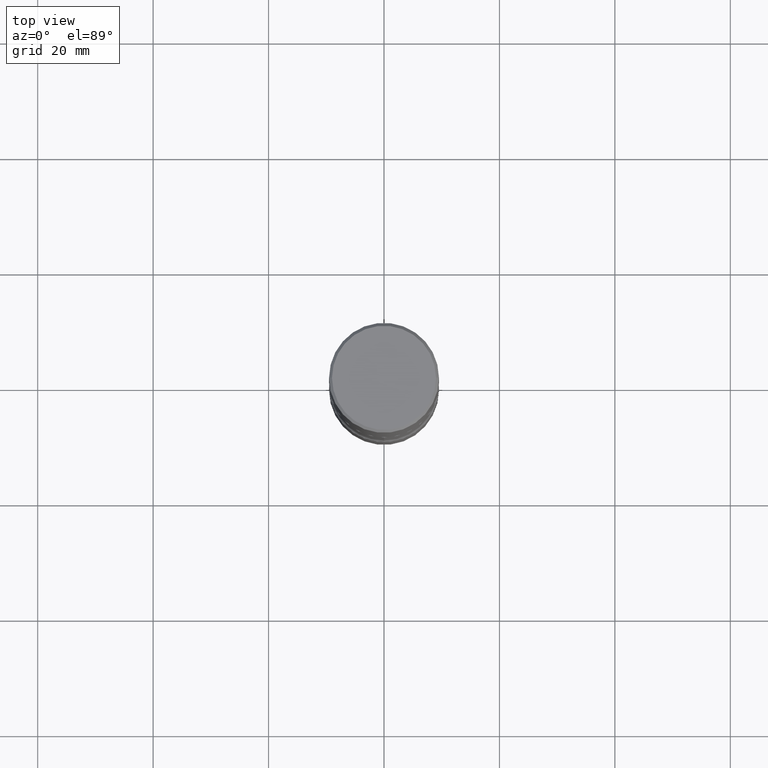
[diagram: clean part render]
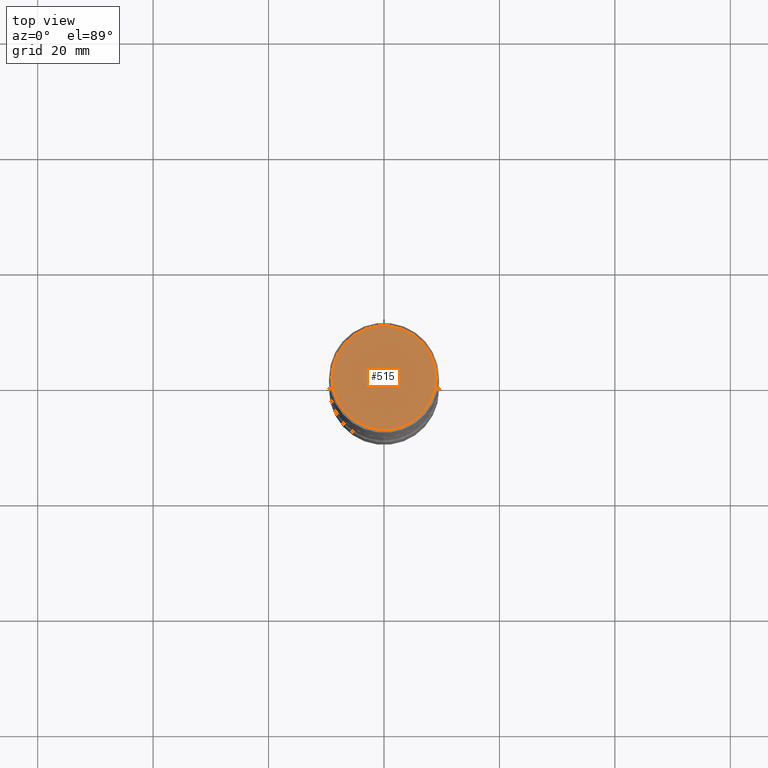
[diagram: same view with one face highlighted and labeled with its STEP entity id]
A machine part, top view. The second image highlights one B-rep face of the part: STEP entity #515.
In plain terms, the highlighted planar face has unit normal (0, -0, -1).
Its self-contained STEP definition (entity closure, byte-faithful):
#6 = DIRECTION ( 'NONE',  ( 1.000000000000000000, -6.982962677686266711E-15, 4.876231632511983138E-29 ) ) ;
#81 = CARTESIAN_POINT ( 'NONE',  ( 3.131554243005659264E-46, -4.471029511141341874E-32, -1.280553747030123384E-17 ) ) ;
#91 = CIRCLE ( 'NONE', #378, 0.3550000000000003708 ) ;
#93 = PLANE ( 'NONE',  #125 ) ;
#99 = CARTESIAN_POINT ( 'NONE',  ( -0.3550000000000003708, 2.513866563967058619E-15, -1.280553747031869201E-17 ) ) ;
#125 = AXIS2_PLACEMENT_3D ( 'NONE', #532, #306, #476 ) ;
#155 = EDGE_CURVE ( 'NONE', #523, #402, #433, .T. ) ;
#158 = EDGE_LOOP ( 'NONE', ( #325, #538 ) ) ;
#250 = DIRECTION ( 'NONE',  ( -2.445468806185136597E-29, 3.491481338843145583E-15, 1.000000000000000000 ) ) ;
#306 = DIRECTION ( 'NONE',  ( 2.438088387897960049E-29, -3.491481338843145188E-15, -1.000000000000000000 ) ) ;
#325 = ORIENTED_EDGE ( 'NONE', *, *, #155, .T. ) ;
#336 = CARTESIAN_POINT ( 'NONE',  ( 3.131554243005659264E-46, -4.471029511141341874E-32, -1.280553747030123384E-17 ) ) ;
#378 = AXIS2_PLACEMENT_3D ( 'NONE', #336, #250, #6 ) ;
#402 = VERTEX_POINT ( 'NONE', #517 ) ;
#433 = CIRCLE ( 'NONE', #470, 0.3550000000000003708 ) ;
#459 = DIRECTION ( 'NONE',  ( 1.000000000000000000, -6.982962677686266711E-15, 4.876231632511983138E-29 ) ) ;
#470 = AXIS2_PLACEMENT_3D ( 'NONE', #81, #509, #459 ) ;
#475 = EDGE_CURVE ( 'NONE', #402, #523, #91, .T. ) ;
#476 = DIRECTION ( 'NONE',  ( -1.000000000000000000, 6.982962677686265922E-15, -4.876176775795935793E-29 ) ) ;
#509 = DIRECTION ( 'NONE',  ( -2.445468806185136597E-29, 3.491481338843145583E-15, 1.000000000000000000 ) ) ;
#515 = ADVANCED_FACE ( 'NONE', ( #526 ), #93, .F. ) ;
#517 = CARTESIAN_POINT ( 'NONE',  ( 0.3550000000000003708, -2.538996582575043809E-15, -1.280553747028368784E-17 ) ) ;
#523 = VERTEX_POINT ( 'NONE', #99 ) ;
#526 = FACE_OUTER_BOUND ( 'NONE', #158, .T. ) ;
#532 = CARTESIAN_POINT ( 'NONE',  ( 2.478951750578627364E-15, 0.3550000000000003708, -1.245878644024468661E-15 ) ) ;
#538 = ORIENTED_EDGE ( 'NONE', *, *, #475, .T. ) ;